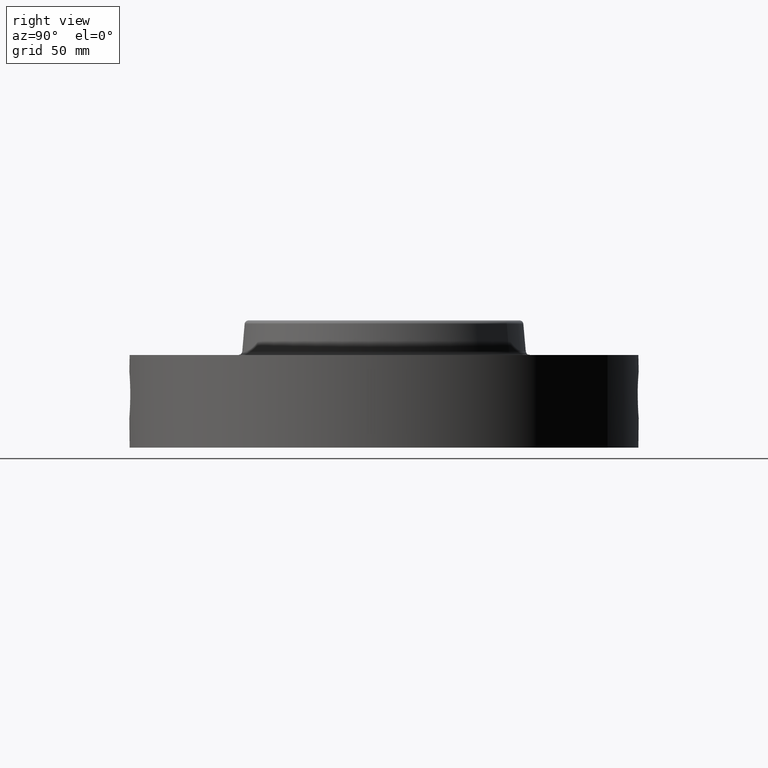
[diagram: clean part render]
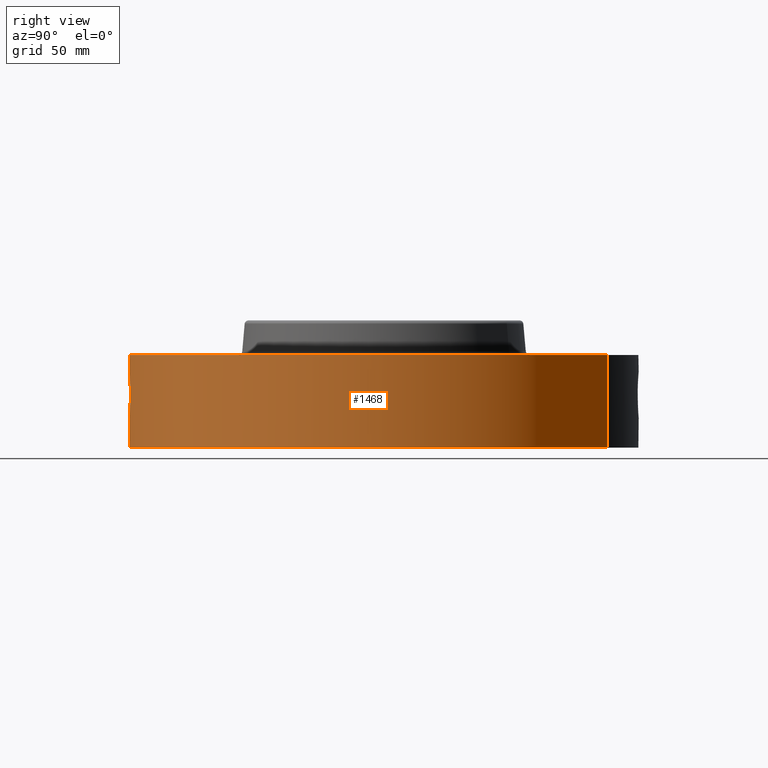
[diagram: same view with one face highlighted and labeled with its STEP entity id]
A machine part, right view. The second image highlights one B-rep face of the part: STEP entity #1468.
In plain terms, the highlighted cylindrical surface (partial cylindrical patch) has radius 104.775 mm, axis along (0, 0, -1).
Its self-contained STEP definition (entity closure, byte-faithful):
#611=AXIS2_PLACEMENT_3D('Circle Axis2P3D',#609,#610,$) ;
#1199=AXIS2_PLACEMENT_3D('Cylinder Axis2P3D',#1196,#1197,#1198) ;
#1344=AXIS2_PLACEMENT_3D('Circle Axis2P3D',#1342,#1343,$) ;
#604=CARTESIAN_POINT('Vertex',(-1.97763034675,-3.62002806781,0.0600000000002)) ;
#606=CARTESIAN_POINT('Vertex',(1.97763034675,3.62002806781,0.0600000000002)) ;
#609=CARTESIAN_POINT('Axis2P3D Location',(0.,0.,0.0600000000002)) ;
#1196=CARTESIAN_POINT('Axis2P3D Location',(0.,0.,1.09)) ;
#1201=CARTESIAN_POINT('Line Origine',(-1.97763034675,-3.62002806781,0.810000000003)) ;
#1205=CARTESIAN_POINT('Vertex',(-1.97763034675,-3.62002806781,1.56000000001)) ;
#1212=CARTESIAN_POINT('Vertex',(1.97763034675,3.62002806781,1.56000000001)) ;
#1215=CARTESIAN_POINT('Line Origine',(1.97763034675,3.62002806781,0.810000000003)) ;
#1342=CARTESIAN_POINT('Axis2P3D Location',(0.,0.,1.56000000001)) ;
#1354=CARTESIAN_POINT('Control Point',(0.0708258696238,-4.12439191837,1.28694445409)) ;
#1355=CARTESIAN_POINT('Control Point',(0.0477756042402,-4.12478774765,1.29166264764)) ;
#1356=CARTESIAN_POINT('Control Point',(0.0242493397332,-4.12499584526,1.29407066085)) ;
#1357=CARTESIAN_POINT('Control Point',(0.000717367783325,-4.12499993764,1.29411849621)) ;
#1358=CARTESIAN_POINT('Vertex',(0.0707931255285,-4.12439274845,1.28695147494)) ;
#1360=CARTESIAN_POINT('Vertex',(0.00071711567586,-4.12499993768,1.29411850626)) ;
#1364=CARTESIAN_POINT('Control Point',(0.0707929875436,-4.12439248291,1.28695080973)) ;
#1365=CARTESIAN_POINT('Control Point',(0.105534403895,-4.12379616511,1.28076532583)) ;
#1366=CARTESIAN_POINT('Control Point',(0.139240729961,-4.12276500955,1.26858978299)) ;
#1367=CARTESIAN_POINT('Control Point',(0.170106274733,-4.12149109612,1.25141106894)) ;
#1368=CARTESIAN_POINT('Vertex',(0.170106274733,-4.12149109612,1.25141106894)) ;
#1372=CARTESIAN_POINT('Control Point',(0.170106274733,-4.12149109612,1.25141106894)) ;
#1373=CARTESIAN_POINT('Control Point',(0.189944744256,-4.1206723031,1.24036965022)) ;
#1374=CARTESIAN_POINT('Control Point',(0.208623588127,-4.11975702947,1.22728178951)) ;
#1375=CARTESIAN_POINT('Control Point',(0.225825151081,-4.11881390709,1.21251850282)) ;
#1376=CARTESIAN_POINT('Vertex',(0.225825362099,-4.11881409519,1.21251874593)) ;
#1380=CARTESIAN_POINT('Control Point',(0.351866700326,-4.10996530707,0.975464361167)) ;
#1381=CARTESIAN_POINT('Control Point',(0.344978867299,-4.11055499552,1.0439862787)) ;
#1382=CARTESIAN_POINT('Control Point',(0.320314482863,-4.11268399222,1.11077407828)) ;
#1383=CARTESIAN_POINT('Control Point',(0.278761447416,-4.1159117292,1.16853984638)) ;
#1384=CARTESIAN_POINT('Control Point',(0.225809776392,-4.11881475002,1.21253161271)) ;
#1385=CARTESIAN_POINT('Vertex',(0.351866537775,-4.10996536585,0.975466055539)) ;
#1389=CARTESIAN_POINT('Control Point',(0.0285867200519,-4.12490094421,0.531014415425)) ;
#1390=CARTESIAN_POINT('Control Point',(0.0731508323952,-4.12459210242,0.53676262059)) ;
#1391=CARTESIAN_POINT('Control Point',(0.116605911803,-4.12368909709,0.549610401928)) ;
#1392=CARTESIAN_POINT('Control Point',(0.157313656184,-4.12226228881,0.569187265496)) ;
#1393=CARTESIAN_POINT('Control Point',(0.218412033152,-4.11943105988,0.610865799681)) ;
#1394=CARTESIAN_POINT('Control Point',(0.267085984177,-4.11640755897,0.664664117655)) ;
#1395=CARTESIAN_POINT('Control Point',(0.284316422766,-4.11523449191,0.687667885468)) ;
#1396=CARTESIAN_POINT('Control Point',(0.325710071671,-4.11223072828,0.754664964777)) ;
#1397=CARTESIAN_POINT('Control Point',(0.349728178371,-4.11016858959,0.829194136439)) ;
#1398=CARTESIAN_POINT('Control Point',(0.357709929823,-4.10945203007,0.878220924906)) ;
#1399=CARTESIAN_POINT('Control Point',(0.358385651064,-4.10940720015,0.927417505239)) ;
#1400=CARTESIAN_POINT('Control Point',(0.351866458174,-4.1099653278,0.975466036918)) ;
#1401=CARTESIAN_POINT('Vertex',(0.0285867200519,-4.12490094421,0.531014415425)) ;
#1405=CARTESIAN_POINT('Control Point',(0.0285867200519,-4.12490094421,0.531014415425)) ;
#1406=CARTESIAN_POINT('Control Point',(0.0190504033792,-4.12496703356,0.530850653595)) ;
#1407=CARTESIAN_POINT('Control Point',(0.00951371795879,-4.12500000631,0.530970811253)) ;
#1408=CARTESIAN_POINT('Control Point',(-2.72878354221E-006,-4.12500000002,0.531374667805)) ;
#1409=CARTESIAN_POINT('Vertex',(-2.72878353897E-006,-4.12500000002,0.531374667805)) ;
#1413=CARTESIAN_POINT('Control Point',(-0.195057006855,-4.12038563295,0.582957545943)) ;
#1414=CARTESIAN_POINT('Control Point',(-0.134929810898,-4.12323202451,0.551663787969)) ;
#1415=CARTESIAN_POINT('Control Point',(-0.0678695334258,-4.12499995512,0.534254782757)) ;
#1416=CARTESIAN_POINT('Control Point',(-2.72878353854E-006,-4.12500000002,0.531374667805)) ;
#1417=CARTESIAN_POINT('Vertex',(-0.195057006855,-4.12038563295,0.582957545943)) ;
#1421=CARTESIAN_POINT('Control Point',(-0.277741653318,-4.11563902379,0.638820641839)) ;
#1422=CARTESIAN_POINT('Control Point',(-0.252440207964,-4.11734647802,0.61703728036)) ;
#1423=CARTESIAN_POINT('Control Point',(-0.224590631532,-4.11898752584,0.59832859493)) ;
#1424=CARTESIAN_POINT('Control Point',(-0.195057006855,-4.12038563295,0.582957545943)) ;
#1425=CARTESIAN_POINT('Vertex',(-0.277741653318,-4.11563902379,0.638820641839)) ;
#1429=CARTESIAN_POINT('Control Point',(-0.277741653318,-4.11563902379,0.638820641839)) ;
#1430=CARTESIAN_POINT('Control Point',(-0.346084614535,-4.11102693635,0.706500366913)) ;
#1431=CARTESIAN_POINT('Control Point',(-0.392503228732,-4.1063284801,0.795167285707)) ;
#1432=CARTESIAN_POINT('Control Point',(-0.412343746852,-4.10434301328,0.891847251876)) ;
#1433=CARTESIAN_POINT('Control Point',(-0.406546637881,-4.1049171528,0.98790255717)) ;
#1434=CARTESIAN_POINT('Vertex',(-0.406546637881,-4.1049171528,0.98790255717)) ;
#1438=CARTESIAN_POINT('Control Point',(-0.406546637881,-4.1049171528,0.98790255717)) ;
#1439=CARTESIAN_POINT('Control Point',(-0.39669630803,-4.10589271901,1.03992594033)) ;
#1440=CARTESIAN_POINT('Control Point',(-0.377107791088,-4.10780290855,1.08979808973)) ;
#1441=CARTESIAN_POINT('Control Point',(-0.34868084075,-4.11043683845,1.13488020746)) ;
#1442=CARTESIAN_POINT('Control Point',(-0.272595100947,-4.11655133167,1.21936561238)) ;
#1443=CARTESIAN_POINT('Control Point',(-0.173676685768,-4.1218983007,1.27163748858)) ;
#1444=CARTESIAN_POINT('Control Point',(-0.116496598115,-4.12398624661,1.28950778802)) ;
#1445=CARTESIAN_POINT('Control Point',(-0.0578342871642,-4.12500036264,1.29698939342)) ;
#1446=CARTESIAN_POINT('Control Point',(2.58579355097E-005,-4.12499999994,1.29415298439)) ;
#1447=CARTESIAN_POINT('Vertex',(2.58579355095E-005,-4.12499999994,1.29415298439)) ;
#1451=CARTESIAN_POINT('Control Point',(0.000717115663548,-4.12499993768,1.29411850625)) ;
#1452=CARTESIAN_POINT('Control Point',(0.000371509656305,-4.12499999777,1.29413603992)) ;
#1453=CARTESIAN_POINT('Control Point',(2.585794392E-005,-4.12499999994,1.29415298439)) ;
#610=DIRECTION('Axis2P3D Direction',(0.,0.,-0.0393700787402)) ;
#1197=DIRECTION('Axis2P3D Direction',(0.,0.,-0.0393700787402)) ;
#1198=DIRECTION('Axis2P3D XDirection',(0.0188750212049,0.0345504945626,0.)) ;
#1202=DIRECTION('Vector Direction',(0.,0.,-0.0393700787402)) ;
#1216=DIRECTION('Vector Direction',(0.,0.,-0.0393700787402)) ;
#1343=DIRECTION('Axis2P3D Direction',(0.,0.,-0.0393700787402)) ;
#1203=VECTOR('Line Direction',#1202,0.0393700787402) ;
#1217=VECTOR('Line Direction',#1216,0.0393700787402) ;
#1348=ORIENTED_EDGE('',*,*,#613,.F.) ;
#1349=ORIENTED_EDGE('',*,*,#1219,.T.) ;
#1350=ORIENTED_EDGE('',*,*,#1346,.T.) ;
#1351=ORIENTED_EDGE('',*,*,#1207,.F.) ;
#1456=ORIENTED_EDGE('',*,*,#1362,.F.) ;
#1457=ORIENTED_EDGE('',*,*,#1370,.T.) ;
#1458=ORIENTED_EDGE('',*,*,#1378,.T.) ;
#1459=ORIENTED_EDGE('',*,*,#1387,.F.) ;
#1460=ORIENTED_EDGE('',*,*,#1403,.F.) ;
#1461=ORIENTED_EDGE('',*,*,#1411,.T.) ;
#1462=ORIENTED_EDGE('',*,*,#1419,.F.) ;
#1463=ORIENTED_EDGE('',*,*,#1427,.F.) ;
#1464=ORIENTED_EDGE('',*,*,#1436,.T.) ;
#1465=ORIENTED_EDGE('',*,*,#1449,.T.) ;
#1466=ORIENTED_EDGE('',*,*,#1454,.F.) ;
#1467=FACE_BOUND('',#1455,.T.) ;
#1468=ADVANCED_FACE('PartBody',(#1352,#1467),#1200,.T.) ;
#1353=B_SPLINE_CURVE_WITH_KNOTS('',3,(#1354,#1355,#1356,#1357),.UNSPECIFIED.,.F.,.U.,(4,4),(3.91174753828,6.5224118711),.UNSPECIFIED.) ;
#1363=B_SPLINE_CURVE_WITH_KNOTS('',3,(#1364,#1365,#1366,#1367),.UNSPECIFIED.,.F.,.U.,(4,4),(0.,3.96493926513),.UNSPECIFIED.) ;
#1371=B_SPLINE_CURVE_WITH_KNOTS('',3,(#1372,#1373,#1374,#1375),.UNSPECIFIED.,.F.,.U.,(4,4),(0.,2.54841856441),.UNSPECIFIED.) ;
#1379=B_SPLINE_CURVE_WITH_KNOTS('',4,(#1380,#1381,#1382,#1383,#1384),.UNSPECIFIED.,.F.,.U.,(5,5),(14.8279676909,25.0223849782),.UNSPECIFIED.) ;
#1388=B_SPLINE_CURVE_WITH_KNOTS('',5,(#1389,#1390,#1391,#1392,#1393,#1394,#1395,#1396,#1397,#1398,#1399,#1400),.UNSPECIFIED.,.F.,.U.,(6,3,3,6),(0.,7.80985906661,12.9724794098,22.0575185809),.UNSPECIFIED.) ;
#1404=B_SPLINE_CURVE_WITH_KNOTS('',3,(#1405,#1406,#1407,#1408),.UNSPECIFIED.,.F.,.U.,(4,4),(0.,0.994579949519),.UNSPECIFIED.) ;
#1412=B_SPLINE_CURVE_WITH_KNOTS('',3,(#1413,#1414,#1415,#1416),.UNSPECIFIED.,.F.,.U.,(4,4),(0.,7.09287457886),.UNSPECIFIED.) ;
#1420=B_SPLINE_CURVE_WITH_KNOTS('',3,(#1421,#1422,#1423,#1424),.UNSPECIFIED.,.F.,.U.,(4,4),(0.,3.48391923031),.UNSPECIFIED.) ;
#1428=B_SPLINE_CURVE_WITH_KNOTS('',4,(#1429,#1430,#1431,#1432,#1433),.UNSPECIFIED.,.F.,.U.,(5,5),(0.,13.3803771469),.UNSPECIFIED.) ;
#1437=B_SPLINE_CURVE_WITH_KNOTS('',5,(#1438,#1439,#1440,#1441,#1442,#1443,#1444,#1445,#1446),.UNSPECIFIED.,.F.,.U.,(6,3,6),(0.,9.20582229303,20.0210803141),.UNSPECIFIED.) ;
#1450=B_SPLINE_CURVE_WITH_KNOTS('',2,(#1451,#1452,#1453),.UNSPECIFIED.,.F.,.U.,(3,3),(1.12444292039,1.15028670438),.UNSPECIFIED.) ;
#612=CIRCLE('generated circle',#611,4.12500000002) ;
#1345=CIRCLE('generated circle',#1344,4.12500000002) ;
#1200=CYLINDRICAL_SURFACE('generated cylinder',#1199,4.12500000002) ;
#613=EDGE_CURVE('',#607,#605,#612,.T.) ;
#1207=EDGE_CURVE('',#605,#1206,#1204,.F.) ;
#1219=EDGE_CURVE('',#607,#1213,#1218,.F.) ;
#1346=EDGE_CURVE('',#1213,#1206,#1345,.T.) ;
#1362=EDGE_CURVE('',#1359,#1361,#1353,.T.) ;
#1370=EDGE_CURVE('',#1359,#1369,#1363,.T.) ;
#1378=EDGE_CURVE('',#1369,#1377,#1371,.T.) ;
#1387=EDGE_CURVE('',#1386,#1377,#1379,.T.) ;
#1403=EDGE_CURVE('',#1402,#1386,#1388,.T.) ;
#1411=EDGE_CURVE('',#1402,#1410,#1404,.T.) ;
#1419=EDGE_CURVE('',#1418,#1410,#1412,.T.) ;
#1427=EDGE_CURVE('',#1426,#1418,#1420,.T.) ;
#1436=EDGE_CURVE('',#1426,#1435,#1428,.T.) ;
#1449=EDGE_CURVE('',#1435,#1448,#1437,.T.) ;
#1454=EDGE_CURVE('',#1361,#1448,#1450,.T.) ;
#1347=EDGE_LOOP('',(#1348,#1349,#1350,#1351)) ;
#1455=EDGE_LOOP('',(#1456,#1457,#1458,#1459,#1460,#1461,#1462,#1463,#1464,#1465,#1466)) ;
#1352=FACE_OUTER_BOUND('',#1347,.T.) ;
#1204=LINE('Line',#1201,#1203) ;
#1218=LINE('Line',#1215,#1217) ;
#605=VERTEX_POINT('',#604) ;
#607=VERTEX_POINT('',#606) ;
#1206=VERTEX_POINT('',#1205) ;
#1213=VERTEX_POINT('',#1212) ;
#1359=VERTEX_POINT('',#1358) ;
#1361=VERTEX_POINT('',#1360) ;
#1369=VERTEX_POINT('',#1368) ;
#1377=VERTEX_POINT('',#1376) ;
#1386=VERTEX_POINT('',#1385) ;
#1402=VERTEX_POINT('',#1401) ;
#1410=VERTEX_POINT('',#1409) ;
#1418=VERTEX_POINT('',#1417) ;
#1426=VERTEX_POINT('',#1425) ;
#1435=VERTEX_POINT('',#1434) ;
#1448=VERTEX_POINT('',#1447) ;